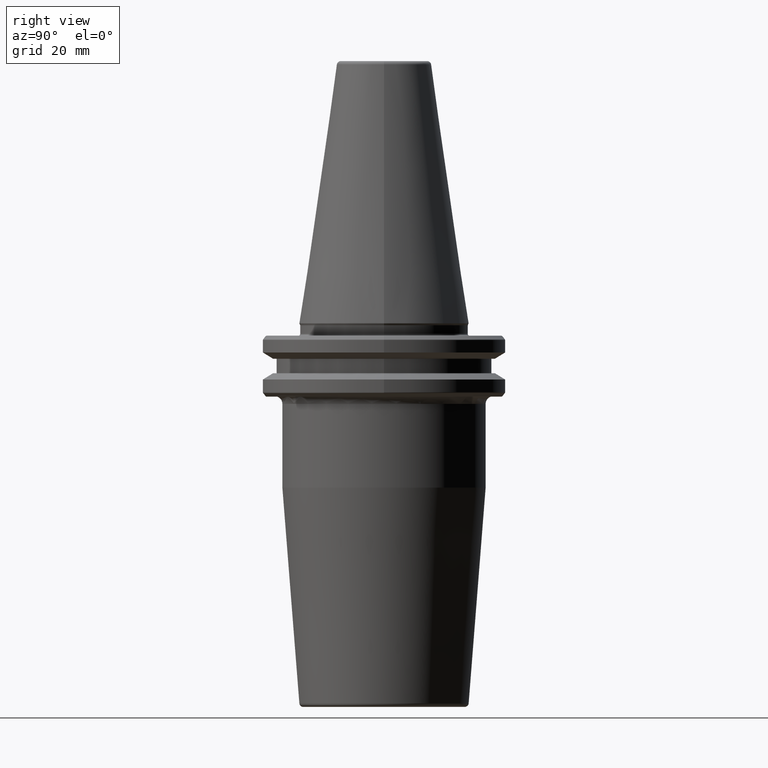
[diagram: clean part render]
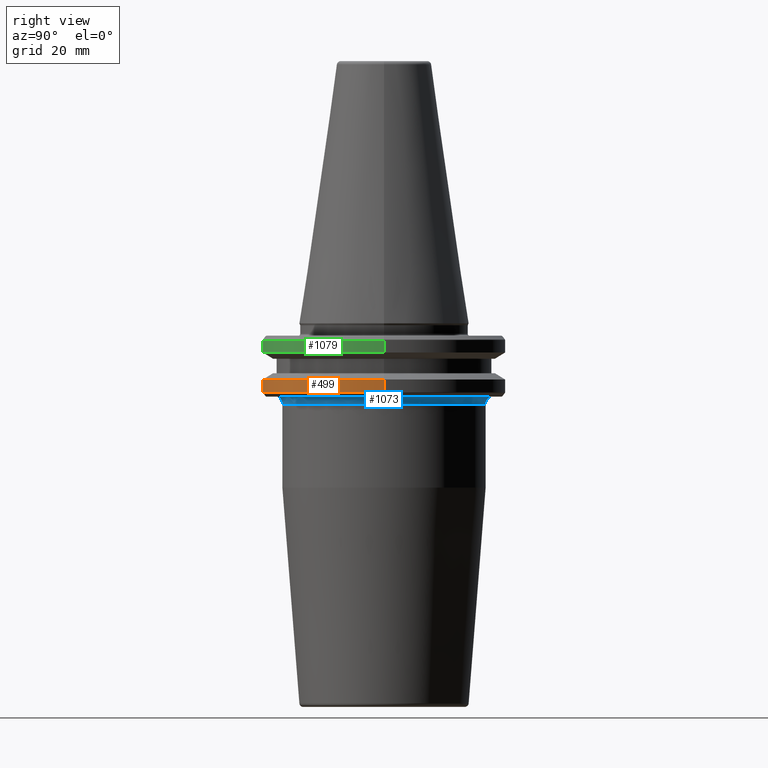
[diagram: same view with three faces highlighted in distinct colors, each labeled with its STEP entity id]
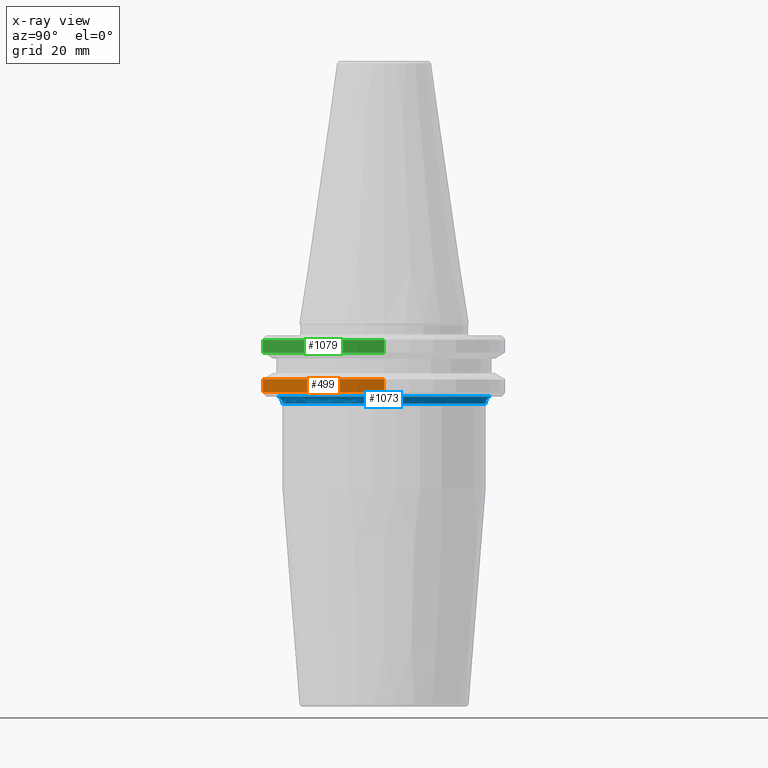
[diagram: x-ray of the same camera — body ghosted, the three highlighted faces saturated]
A machine part, right view with three faces highlighted in distinct colors.
The next image is the same camera in x-ray (body ghosted, the three faces saturated) — at least one of them is partly hidden behind the body in this view.
Their STEP definitions:

[orange] entity #499 — the highlighted cylindrical surface (partial cylindrical patch) has radius 31.75 mm, axis along (-0, -0, 1).
#19 = ORIENTED_EDGE ( 'NONE', *, *, #1145, .T. ) ;
#43 = VECTOR ( 'NONE', #584, 1000.000000000000000 ) ;
#49 = DIRECTION ( 'NONE',  ( 1.000000000000000000, 0.0000000000000000000, 0.0000000000000000000 ) ) ;
#68 = DIRECTION ( 'NONE',  ( 1.000000000000000000, 0.0000000000000000000, 0.0000000000000000000 ) ) ;
#106 = ORIENTED_EDGE ( 'NONE', *, *, #492, .T. ) ;
#173 = CARTESIAN_POINT ( 'NONE',  ( 0.0000000000000000000, 0.0000000000000000000, -14.62183664205671200 ) ) ;
#178 = CARTESIAN_POINT ( 'NONE',  ( 31.75000000000000000, 0.0000000000000000000, -17.93431457505076300 ) ) ;
#186 = DIRECTION ( 'NONE',  ( -0.0000000000000000000, -0.0000000000000000000, 1.000000000000000000 ) ) ;
#192 = ORIENTED_EDGE ( 'NONE', *, *, #793, .F. ) ;
#208 = VERTEX_POINT ( 'NONE', #1199 ) ;
#226 = EDGE_LOOP ( 'NONE', ( #192, #106, #19, #1084 ) ) ;
#263 = CARTESIAN_POINT ( 'NONE',  ( 0.0000000000000000000, 0.0000000000000000000, -17.93431457505076300 ) ) ;
#367 = DIRECTION ( 'NONE',  ( -0.0000000000000000000, -0.0000000000000000000, 1.000000000000000000 ) ) ;
#384 = LINE ( 'NONE', #978, #448 ) ;
#426 = VERTEX_POINT ( 'NONE', #506 ) ;
#433 = CYLINDRICAL_SURFACE ( 'NONE', #1260, 31.75000000000000000 ) ;
#441 = AXIS2_PLACEMENT_3D ( 'NONE', #173, #367, #68 ) ;
#448 = VECTOR ( 'NONE', #186, 1000.000000000000000 ) ;
#453 = DIRECTION ( 'NONE',  ( -0.0000000000000000000, -0.0000000000000000000, 1.000000000000000000 ) ) ;
#492 = EDGE_CURVE ( 'NONE', #208, #1124, #989, .T. ) ;
#499 = ADVANCED_FACE ( 'NONE', ( #731 ), #433, .T. ) ;
#506 = CARTESIAN_POINT ( 'NONE',  ( -31.75000000000000000, 3.888253587292846500E-015, -14.62183664205671200 ) ) ;
#584 = DIRECTION ( 'NONE',  ( -0.0000000000000000000, -0.0000000000000000000, 1.000000000000000000 ) ) ;
#638 = CARTESIAN_POINT ( 'NONE',  ( 0.0000000000000000000, 0.0000000000000000000, 113.5216080541959500 ) ) ;
#681 = EDGE_CURVE ( 'NONE', #426, #700, #1001, .T. ) ;
#700 = VERTEX_POINT ( 'NONE', #766 ) ;
#731 = FACE_OUTER_BOUND ( 'NONE', #226, .T. ) ;
#766 = CARTESIAN_POINT ( 'NONE',  ( 31.75000000000000000, 0.0000000000000000000, -14.62183664205671200 ) ) ;
#793 = EDGE_CURVE ( 'NONE', #208, #426, #384, .T. ) ;
#801 = LINE ( 'NONE', #864, #43 ) ;
#864 = CARTESIAN_POINT ( 'NONE',  ( 31.75000000000000000, 0.0000000000000000000, 113.5216080541959500 ) ) ;
#935 = DIRECTION ( 'NONE',  ( -0.0000000000000000000, -0.0000000000000000000, 1.000000000000000000 ) ) ;
#936 = DIRECTION ( 'NONE',  ( 1.000000000000000000, 0.0000000000000000000, 0.0000000000000000000 ) ) ;
#978 = CARTESIAN_POINT ( 'NONE',  ( -31.75000000000000000, 3.888253587292846500E-015, 113.5216080541959500 ) ) ;
#989 = CIRCLE ( 'NONE', #1066, 31.75000000000000000 ) ;
#1001 = CIRCLE ( 'NONE', #441, 31.75000000000000000 ) ;
#1066 = AXIS2_PLACEMENT_3D ( 'NONE', #263, #453, #936 ) ;
#1084 = ORIENTED_EDGE ( 'NONE', *, *, #681, .F. ) ;
#1124 = VERTEX_POINT ( 'NONE', #178 ) ;
#1145 = EDGE_CURVE ( 'NONE', #1124, #700, #801, .T. ) ;
#1199 = CARTESIAN_POINT ( 'NONE',  ( -31.75000000000000000, 3.888253587292846500E-015, -17.93431457505076300 ) ) ;
#1260 = AXIS2_PLACEMENT_3D ( 'NONE', #638, #935, #49 ) ;

[blue] entity #1073 — the highlighted toroidal blend (fillet) surface has major radius 28.5 mm and minor (blend) radius 2 mm.
#51 = DIRECTION ( 'NONE',  ( 1.000000000000000000, 1.224646799147353200E-016, 2.980690324166090900E-032 ) ) ;
#63 = CARTESIAN_POINT ( 'NONE',  ( 3.245314017740488100E-015, -26.50000000000003200, -20.98284271247461400 ) ) ;
#73 = ORIENTED_EDGE ( 'NONE', *, *, #535, .T. ) ;
#138 = VERTEX_POINT ( 'NONE', #449 ) ;
#162 = DIRECTION ( 'NONE',  ( 1.000000000000000000, 0.0000000000000000000, 0.0000000000000000000 ) ) ;
#167 = AXIS2_PLACEMENT_3D ( 'NONE', #893, #751, #1110 ) ;
#190 = CIRCLE ( 'NONE', #753, 2.000000000000001800 ) ;
#212 = CIRCLE ( 'NONE', #769, 26.50000000000001400 ) ;
#269 = CARTESIAN_POINT ( 'NONE',  ( 0.0000000000000000000, -1.734723475976807100E-014, -19.10000000000000500 ) ) ;
#289 = VERTEX_POINT ( 'NONE', #736 ) ;
#294 = EDGE_CURVE ( 'NONE', #1154, #138, #190, .T. ) ;
#364 = CARTESIAN_POINT ( 'NONE',  ( 3.490243377569958000E-015, -28.50000000000003200, -20.98284271247461400 ) ) ;
#370 = ORIENTED_EDGE ( 'NONE', *, *, #524, .F. ) ;
#400 = TOROIDAL_SURFACE ( 'NONE', #167, 28.50000000000001400, 2.000000000000000000 ) ;
#402 = CIRCLE ( 'NONE', #1013, 27.82553478956935000 ) ;
#449 = CARTESIAN_POINT ( 'NONE',  ( 3.407645211460943300E-015, -27.82553478956937800, -19.10000000000000500 ) ) ;
#524 = EDGE_CURVE ( 'NONE', #656, #1154, #212, .T. ) ;
#535 = EDGE_CURVE ( 'NONE', #656, #289, #703, .T. ) ;
#544 = ORIENTED_EDGE ( 'NONE', *, *, #571, .T. ) ;
#553 = DIRECTION ( 'NONE',  ( 0.0000000000000000000, 1.000000000000000000, 2.618450529776311300E-016 ) ) ;
#571 = EDGE_CURVE ( 'NONE', #289, #138, #402, .T. ) ;
#656 = VERTEX_POINT ( 'NONE', #1088 ) ;
#703 = CIRCLE ( 'NONE', #1252, 2.000000000000001800 ) ;
#736 = CARTESIAN_POINT ( 'NONE',  ( 0.0000000000000000000, 27.82553478956932500, -19.10000000000000500 ) ) ;
#751 = DIRECTION ( 'NONE',  ( -0.0000000000000000000, 2.433918356085496500E-016, -1.000000000000000000 ) ) ;
#753 = AXIS2_PLACEMENT_3D ( 'NONE', #364, #51, #1049 ) ;
#755 = DIRECTION ( 'NONE',  ( -0.0000000000000000000, 2.433918356085496500E-016, -1.000000000000000000 ) ) ;
#769 = AXIS2_PLACEMENT_3D ( 'NONE', #1254, #755, #553 ) ;
#893 = CARTESIAN_POINT ( 'NONE',  ( 0.0000000000000000000, -1.734723475976807100E-014, -20.98284271247460700 ) ) ;
#919 = EDGE_LOOP ( 'NONE', ( #1005, #370, #73, #544 ) ) ;
#926 = DIRECTION ( 'NONE',  ( 0.0000000000000000000, 0.0000000000000000000, 1.000000000000000000 ) ) ;
#1005 = ORIENTED_EDGE ( 'NONE', *, *, #294, .F. ) ;
#1013 = AXIS2_PLACEMENT_3D ( 'NONE', #269, #1038, #162 ) ;
#1022 = CARTESIAN_POINT ( 'NONE',  ( 0.0000000000000000000, 28.49999999999999600, -20.98284271247460000 ) ) ;
#1038 = DIRECTION ( 'NONE',  ( 0.0000000000000000000, 0.0000000000000000000, -1.000000000000000000 ) ) ;
#1049 = DIRECTION ( 'NONE',  ( -1.224646799147351500E-016, 1.000000000000000000, 0.0000000000000000000 ) ) ;
#1073 = ADVANCED_FACE ( 'NONE', ( #1171 ), #400, .F. ) ;
#1088 = CARTESIAN_POINT ( 'NONE',  ( 0.0000000000000000000, 26.49999999999999600, -20.98284271247460000 ) ) ;
#1110 = DIRECTION ( 'NONE',  ( 0.0000000000000000000, 1.000000000000000000, 2.433918356085496500E-016 ) ) ;
#1154 = VERTEX_POINT ( 'NONE', #63 ) ;
#1171 = FACE_OUTER_BOUND ( 'NONE', #919, .T. ) ;
#1214 = DIRECTION ( 'NONE',  ( -1.000000000000000000, 0.0000000000000000000, 0.0000000000000000000 ) ) ;
#1252 = AXIS2_PLACEMENT_3D ( 'NONE', #1022, #1214, #926 ) ;
#1254 = CARTESIAN_POINT ( 'NONE',  ( 0.0000000000000000000, -1.678283735848558500E-014, -20.98284271247460700 ) ) ;

[green] entity #1079 — the highlighted cylindrical surface (partial cylindrical patch) has radius 31.75 mm, axis along (-0, -0, 1).
#2 = CARTESIAN_POINT ( 'NONE',  ( 0.0000000000000000000, 0.0000000000000000000, -4.365685424949250000 ) ) ;
#48 = CARTESIAN_POINT ( 'NONE',  ( -31.75000000000000000, 3.888253587292846500E-015, -7.578163357943284800 ) ) ;
#75 = CYLINDRICAL_SURFACE ( 'NONE', #293, 31.75000000000000000 ) ;
#83 = VERTEX_POINT ( 'NONE', #856 ) ;
#89 = VERTEX_POINT ( 'NONE', #505 ) ;
#95 = CARTESIAN_POINT ( 'NONE',  ( 31.75000000000000000, 0.0000000000000000000, -4.365685424949250000 ) ) ;
#110 = ORIENTED_EDGE ( 'NONE', *, *, #822, .T. ) ;
#152 = CARTESIAN_POINT ( 'NONE',  ( 0.0000000000000000000, 0.0000000000000000000, -7.578163357943284800 ) ) ;
#188 = DIRECTION ( 'NONE',  ( -0.0000000000000000000, -0.0000000000000000000, 1.000000000000000000 ) ) ;
#189 = CARTESIAN_POINT ( 'NONE',  ( -31.75000000000000000, 3.888253587292846500E-015, 113.5216080541959500 ) ) ;
#191 = ORIENTED_EDGE ( 'NONE', *, *, #1174, .F. ) ;
#200 = LINE ( 'NONE', #189, #946 ) ;
#201 = DIRECTION ( 'NONE',  ( -0.0000000000000000000, -0.0000000000000000000, 1.000000000000000000 ) ) ;
#225 = ORIENTED_EDGE ( 'NONE', *, *, #1164, .F. ) ;
#227 = DIRECTION ( 'NONE',  ( -0.0000000000000000000, -0.0000000000000000000, 1.000000000000000000 ) ) ;
#251 = DIRECTION ( 'NONE',  ( 1.000000000000000000, 0.0000000000000000000, 0.0000000000000000000 ) ) ;
#270 = LINE ( 'NONE', #917, #1255 ) ;
#293 = AXIS2_PLACEMENT_3D ( 'NONE', #1043, #316, #500 ) ;
#316 = DIRECTION ( 'NONE',  ( -0.0000000000000000000, -0.0000000000000000000, 1.000000000000000000 ) ) ;
#351 = DIRECTION ( 'NONE',  ( -0.0000000000000000000, -0.0000000000000000000, 1.000000000000000000 ) ) ;
#414 = ORIENTED_EDGE ( 'NONE', *, *, #899, .T. ) ;
#428 = VERTEX_POINT ( 'NONE', #95 ) ;
#500 = DIRECTION ( 'NONE',  ( 1.000000000000000000, 0.0000000000000000000, 0.0000000000000000000 ) ) ;
#505 = CARTESIAN_POINT ( 'NONE',  ( -31.75000000000000000, 3.888253587292846500E-015, -4.365685424949250000 ) ) ;
#534 = EDGE_LOOP ( 'NONE', ( #191, #110, #414, #225 ) ) ;
#616 = AXIS2_PLACEMENT_3D ( 'NONE', #152, #188, #251 ) ;
#618 = AXIS2_PLACEMENT_3D ( 'NONE', #2, #227, #1231 ) ;
#664 = FACE_OUTER_BOUND ( 'NONE', #534, .T. ) ;
#822 = EDGE_CURVE ( 'NONE', #1011, #83, #1132, .T. ) ;
#856 = CARTESIAN_POINT ( 'NONE',  ( 31.75000000000000000, 0.0000000000000000000, -7.578163357943284800 ) ) ;
#899 = EDGE_CURVE ( 'NONE', #83, #428, #270, .T. ) ;
#917 = CARTESIAN_POINT ( 'NONE',  ( 31.75000000000000000, 0.0000000000000000000, 113.5216080541959500 ) ) ;
#946 = VECTOR ( 'NONE', #201, 1000.000000000000000 ) ;
#1011 = VERTEX_POINT ( 'NONE', #48 ) ;
#1043 = CARTESIAN_POINT ( 'NONE',  ( 0.0000000000000000000, 0.0000000000000000000, 113.5216080541959500 ) ) ;
#1057 = CIRCLE ( 'NONE', #618, 31.75000000000000000 ) ;
#1079 = ADVANCED_FACE ( 'NONE', ( #664 ), #75, .T. ) ;
#1132 = CIRCLE ( 'NONE', #616, 31.75000000000000000 ) ;
#1164 = EDGE_CURVE ( 'NONE', #89, #428, #1057, .T. ) ;
#1174 = EDGE_CURVE ( 'NONE', #1011, #89, #200, .T. ) ;
#1231 = DIRECTION ( 'NONE',  ( 1.000000000000000000, 0.0000000000000000000, 0.0000000000000000000 ) ) ;
#1255 = VECTOR ( 'NONE', #351, 1000.000000000000000 ) ;